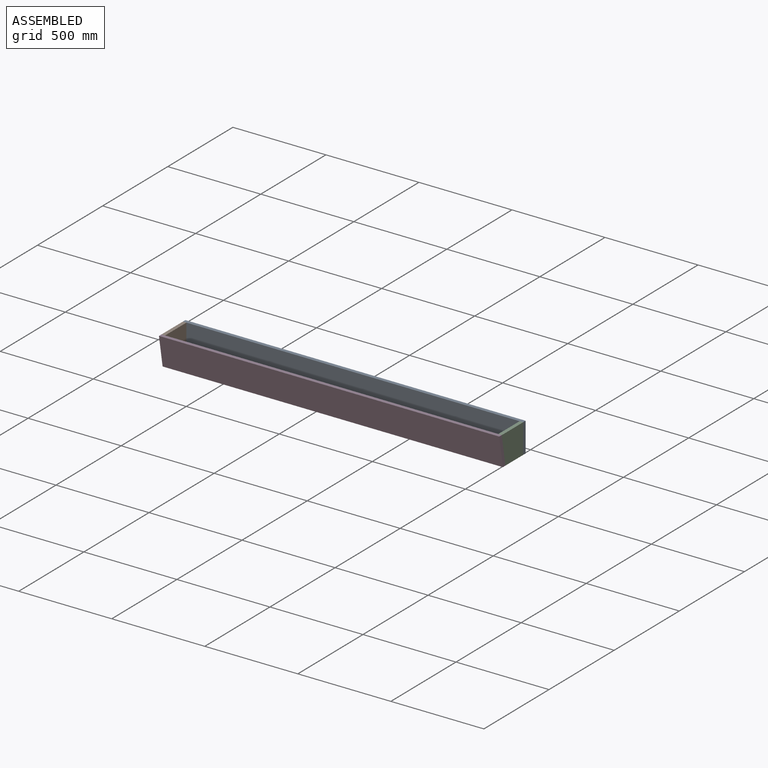
[diagram: assembled view]
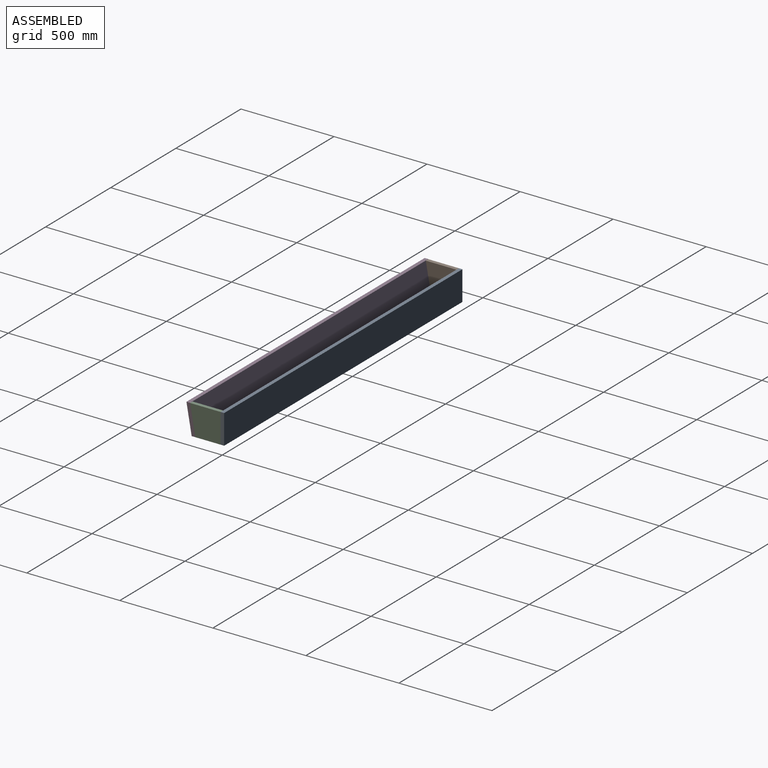
[diagram: assembled view, second angle]
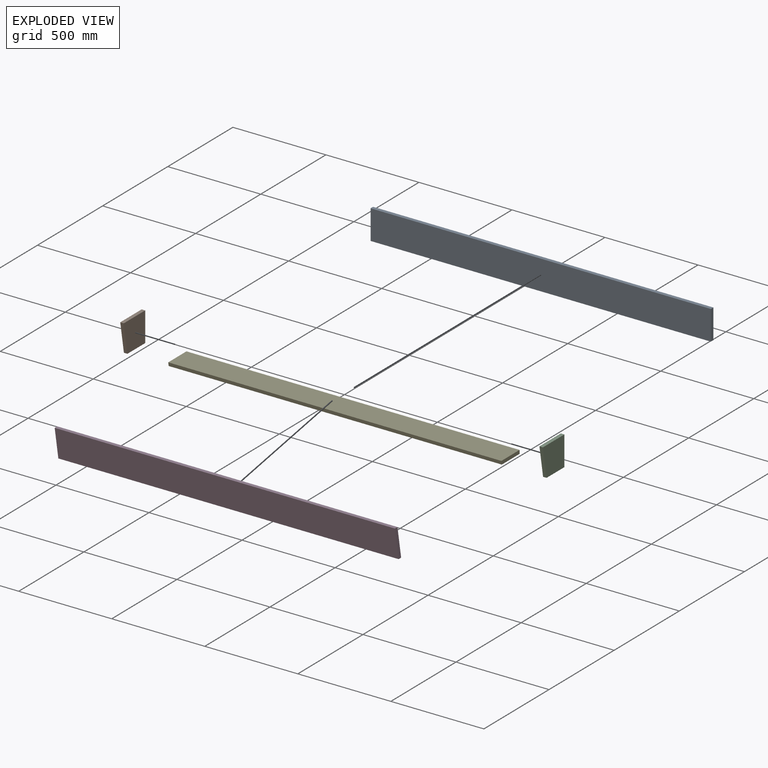
[diagram: exploded view]
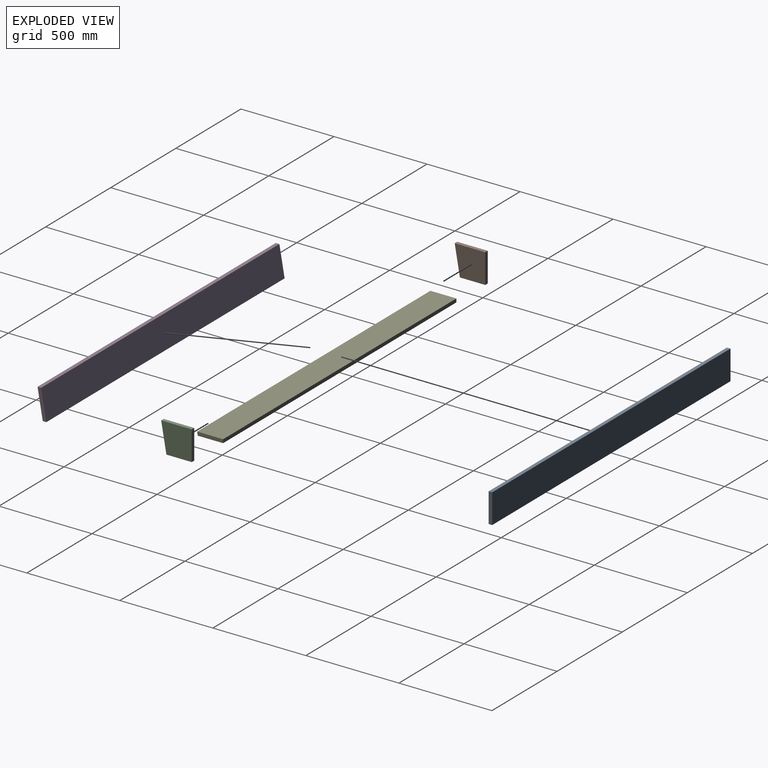
[diagram: exploded view, second angle]
ASSEMBLY  parts=5 mates=4
PART A: 6 faces, bbox 1828.8x19.1x158.8 mm
  f0: plane 1828.8x158.75mm, normal (0,1,0), area 290322mm2, adj f1,f3,f4,f5
  f1: plane 1828.8x19.05mm, normal (0,0,1), area 34838.6mm2, adj f0,f2,f4,f5
  f2: plane 1828.8x158.75mm, normal (0,-1,0), area 290322mm2, adj f1,f3,f4,f5
  f3: plane 1828.8x19.05mm, normal (0,0,-1), area 34838.6mm2, adj f0,f2,f4,f5
  f4: plane 158.75x19.05mm, normal (1,0,0), area 3024.2mm2, adj f0,f1,f2,f3
  f5: plane 158.75x19.05mm, normal (-1,0,0), area 3024.2mm2, adj f0,f1,f2,f3
PART B: 6 faces, bbox 19.1x164.3x158.8 mm
  f0: plane 158.75x27.99mm, normal (0,-0.98,-0.17), area 3070.8mm2, adj f1,f3,f4,f5
  f1: plane 136.35x19.05mm, normal (0,0,-1), area 2597.4mm2, adj f0,f2,f4,f5
  f2: plane 158.75x19.05mm, normal (0,1,0), area 3024.2mm2, adj f1,f3,f4,f5
  f3: plane 164.34x19.05mm, normal (0,0,1), area 3130.7mm2, adj f0,f2,f4,f5
  f4: plane 164.34x158.75mm, normal (1,0,0), area 23867mm2, adj f0,f1,f2,f3
  f5: plane 164.34x158.75mm, normal (-1,0,0), area 23867mm2, adj f0,f1,f2,f3
PART C: same geometry as B
PART D: 6 faces, bbox 1828.8x19.1x165.1 mm
  f0: plane 1828.8x19.05mm, normal (0,-0.17,-0.98), area 35376.1mm2, adj f1,f3,f4,f5
  f1: plane 1828.8x161.74mm, normal (0,1,0), area 295791.9mm2, adj f0,f2,f4,f5
  f2: plane 1828.8x19.05mm, normal (0,0.17,0.98), area 35376.1mm2, adj f1,f3,f4,f5
  f3: plane 1828.8x161.74mm, normal (0,-1,0), area 295791.9mm2, adj f0,f2,f4,f5
  f4: plane 165.1x19.05mm, normal (1,0,0), area 3081.2mm2, adj f0,f1,f2,f3
  f5: plane 165.1x19.05mm, normal (-1,0,0), area 3081.2mm2, adj f0,f1,f2,f3
PART E: 6 faces, bbox 1790.7x139.7x19.1 mm
  f0: plane 1790.7x19.05mm, normal (0,1,0), area 34112.8mm2, adj f1,f3,f4,f5
  f1: plane 1790.7x139.7mm, normal (0,0,1), area 250160.8mm2, adj f0,f2,f4,f5
  f2: plane 1790.7x19.05mm, normal (0,-0.98,-0.17), area 34639.1mm2, adj f1,f3,f4,f5
  f3: plane 1790.7x136.34mm, normal (0,0,-1), area 244145.8mm2, adj f0,f2,f4,f5
  f4: plane 139.7x19.05mm, normal (1,0,0), area 2629.3mm2, adj f0,f1,f2,f3
  f5: plane 139.7x19.05mm, normal (-1,0,0), area 2629.3mm2, adj f0,f1,f2,f3
PLACE A t=(-116.31,149.96,-198.45)mm
PLACE B t=(-116.31,4.09,-277.82)mm
PLACE C t=(1693.44,4.09,-277.82)mm
PLACE D rot(axis=(1,0,0),10deg) t=(-116.31,-19.63,-198.18)mm
PLACE E t=(-97.26,70.59,-268.3)mm
MATE fastened E.f0 <-> A.f2  axis (0,1,0) through (1693.44,140.44,-277.82)mm
MATE fastened D.f1 <-> C.f0  axis (0,0.98,0.17) through (1712.49,4.09,-277.82)mm
MATE fastened B.f4 <-> E.f5  axis (1,0,0) through (-97.26,140.44,-277.82)mm
MATE fastened C.f2 <-> A.f2  axis (0,1,0) through (1712.49,140.44,-119.07)mm
